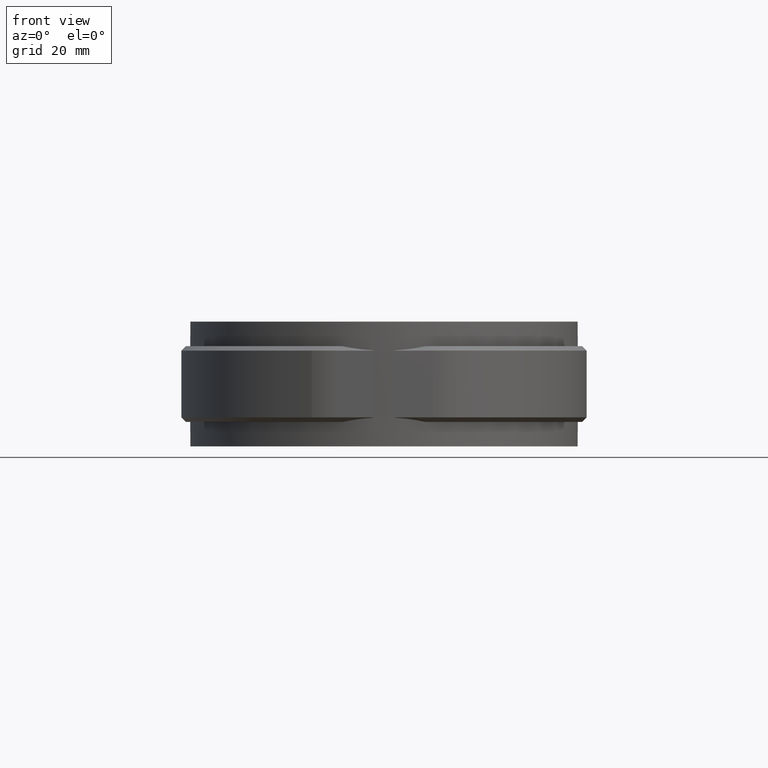
[diagram: clean part render]
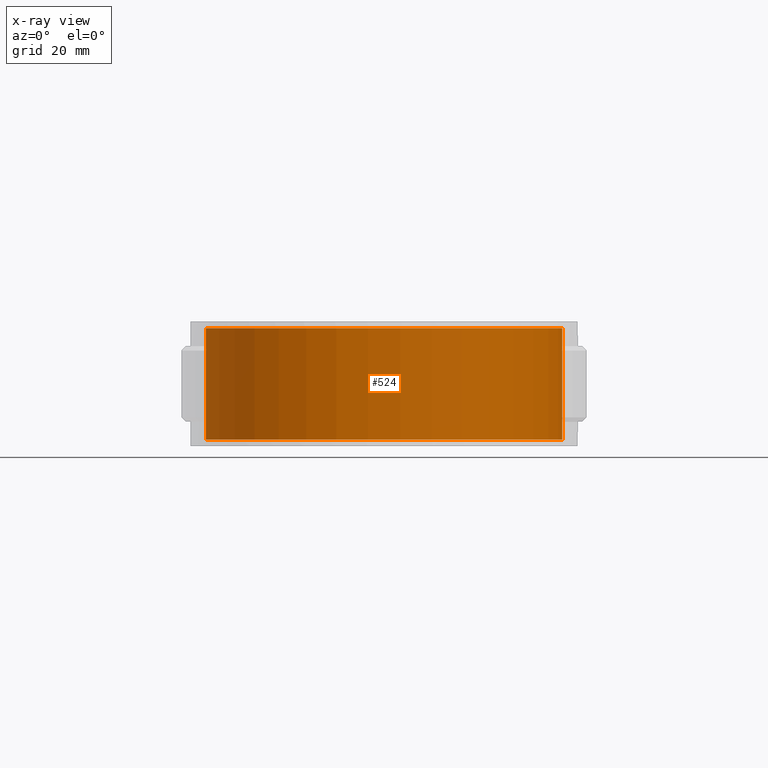
[diagram: x-ray — body ghosted, one internal face saturated and labeled with its STEP entity id]
A machine part, front view, then the same camera in x-ray: the body is ghosted and one INTERNAL B-rep face — a face not visible from any outside direction — is saturated and labeled: STEP entity #524.
In plain terms, the highlighted cylindrical surface (partial cylindrical patch) has radius 40 mm, axis along (0, 0, 1).
Its self-contained STEP definition (entity closure, byte-faithful):
#524 = ADVANCED_FACE( '', ( #975 ), #976, .T. );
#975 = FACE_OUTER_BOUND( '', #2038, .T. );
#976 = CYLINDRICAL_SURFACE( '', #2039, 40.0000000000000 );
#2038 = EDGE_LOOP( '', ( #4615, #4616, #4617, #4618 ) );
#2039 = AXIS2_PLACEMENT_3D( '', #4619, #4620, #4621 );
#4615 = ORIENTED_EDGE( '', *, *, #7687, .T. );
#4616 = ORIENTED_EDGE( '', *, *, #7688, .F. );
#4617 = ORIENTED_EDGE( '', *, *, #7689, .F. );
#4618 = ORIENTED_EDGE( '', *, *, #7690, .T. );
#4619 = CARTESIAN_POINT( '', ( 0.000000000000000, 0.000000000000000, -14.0000000000000 ) );
#4620 = DIRECTION( '', ( 0.000000000000000, 0.000000000000000, 1.00000000000000 ) );
#4621 = DIRECTION( '', ( 1.00000000000000, -6.07153216591883E-017, 0.000000000000000 ) );
#7687 = EDGE_CURVE( '', #8819, #8820, #8821, .T. );
#7688 = EDGE_CURVE( '', #8822, #8820, #8823, .T. );
#7689 = EDGE_CURVE( '', #8824, #8822, #8825, .T. );
#7690 = EDGE_CURVE( '', #8824, #8819, #8826, .T. );
#8819 = VERTEX_POINT( '', #11917 );
#8820 = VERTEX_POINT( '', #11918 );
#8821 = CIRCLE( '', #11919, 40.0000000000000 );
#8822 = VERTEX_POINT( '', #11920 );
#8823 = LINE( '', #11921, #11922 );
#8824 = VERTEX_POINT( '', #11923 );
#8825 = CIRCLE( '', #11924, 40.0000000000000 );
#8826 = LINE( '', #11925, #11926 );
#11917 = CARTESIAN_POINT( '', ( 6.51162790697674, 39.4664249964585, 12.5000000000000 ) );
#11918 = CARTESIAN_POINT( '', ( -6.51162790697674, 39.4664249964585, 12.5000000000000 ) );
#11919 = AXIS2_PLACEMENT_3D( '', #14693, #14694, #14695 );
#11920 = CARTESIAN_POINT( '', ( -6.51162790697675, 39.4664249964585, -12.5000000000000 ) );
#11921 = CARTESIAN_POINT( '', ( -6.51162790697675, 39.4664249964585, -14.0000000000000 ) );
#11922 = VECTOR( '', #14696, 1000.00000000000 );
#11923 = CARTESIAN_POINT( '', ( 6.51162790697675, 39.4664249964585, -12.5000000000000 ) );
#11924 = AXIS2_PLACEMENT_3D( '', #14697, #14698, #14699 );
#11925 = CARTESIAN_POINT( '', ( 6.51162790697675, 39.4664249964585, -14.0000000000000 ) );
#11926 = VECTOR( '', #14700, 1000.00000000000 );
#14693 = CARTESIAN_POINT( '', ( 0.000000000000000, 0.000000000000000, 12.5000000000000 ) );
#14694 = DIRECTION( '', ( 0.000000000000000, 0.000000000000000, -1.00000000000000 ) );
#14695 = DIRECTION( '', ( -1.00000000000000, 0.000000000000000, 0.000000000000000 ) );
#14696 = DIRECTION( '', ( 0.000000000000000, 0.000000000000000, 1.00000000000000 ) );
#14697 = CARTESIAN_POINT( '', ( 0.000000000000000, 0.000000000000000, -12.5000000000000 ) );
#14698 = DIRECTION( '', ( 0.000000000000000, 0.000000000000000, -1.00000000000000 ) );
#14699 = DIRECTION( '', ( -1.00000000000000, 0.000000000000000, 0.000000000000000 ) );
#14700 = DIRECTION( '', ( 0.000000000000000, 0.000000000000000, 1.00000000000000 ) );